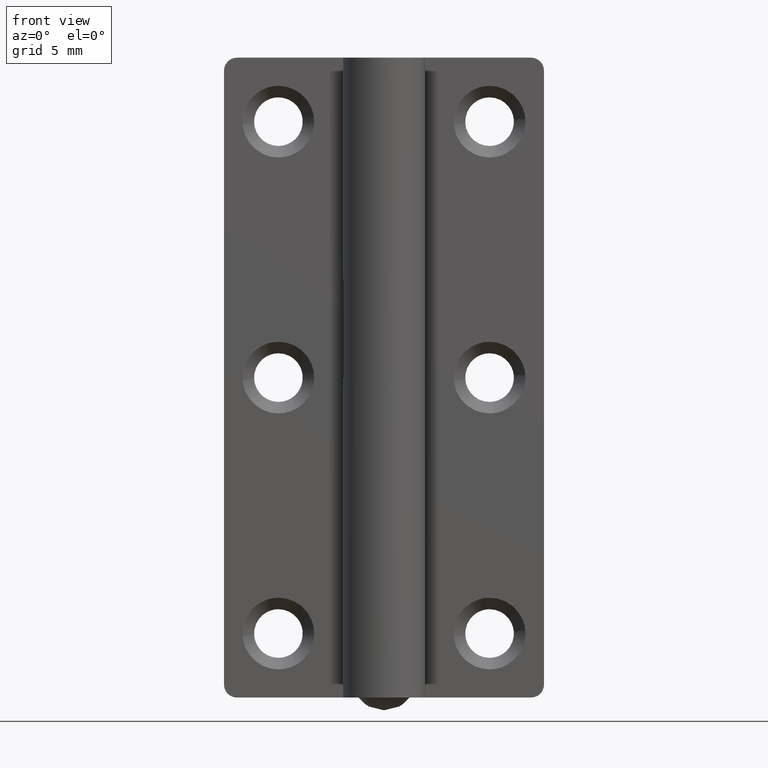
[diagram: clean part render]
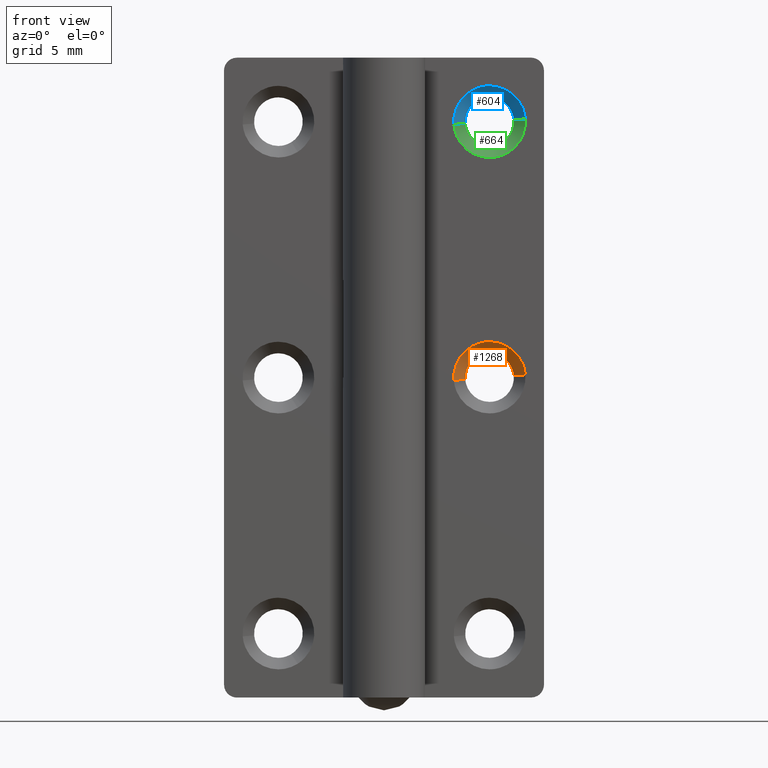
[diagram: same view with three faces highlighted in distinct colors, each labeled with its STEP entity id]
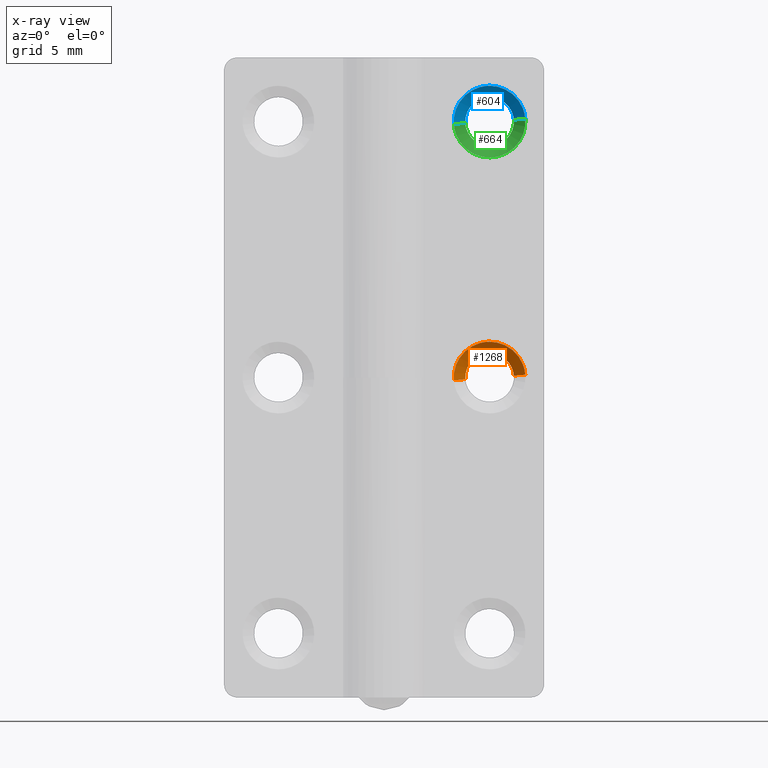
[diagram: x-ray of the same camera — body ghosted, the three highlighted faces saturated]
A machine part, front view with three faces highlighted in distinct colors.
The next image is the same camera in x-ray (body ghosted, the three faces saturated) — at least one of them is partly hidden behind the body in this view.
Their STEP definitions:

[orange] entity #1268 — the highlighted face is a freeform B-spline surface patch.
#1069=CARTESIAN_POINT('',(6.354122178725380,2.900000035761674,24.875737760687880));
#1070=VERTEX_POINT('',#1069);
#1118=CARTESIAN_POINT('',(10.144142934093839,2.900000035760562,25.149072281899809));
#1119=VERTEX_POINT('',#1118);
#1135=CARTESIAN_POINT('',(8.250000000000000,2.900000035762786,26.899999999999999));
#1136=VERTEX_POINT('',#1135);
#1137=CARTESIAN_POINT('',(8.250000000000000,2.900000035762786,26.899999999999999));
#1138=CARTESIAN_POINT('',(10.006341934119469,2.900000035762786,26.900000000000006));
#1139=CARTESIAN_POINT('',(10.144142934093843,2.900000035760562,25.149072281899816));
#1147=(BOUNDED_CURVE()B_SPLINE_CURVE(2,(#1137,#1138,#1139),.UNSPECIFIED.,.F.,.U.)B_SPLINE_CURVE_WITH_KNOTS((3,3),(0.0,0.236331300629738),.UNSPECIFIED.)CURVE()GEOMETRIC_REPRESENTATION_ITEM()RATIONAL_B_SPLINE_CURVE((1.0,0.723120658608745,0.969723356165495))REPRESENTATION_ITEM(''));
#1148=EDGE_CURVE('',#1136,#1119,#1147,.T.);
#1150=CARTESIAN_POINT('',(6.354122178725380,2.900000035761674,24.875737760687873));
#1151=CARTESIAN_POINT('',(6.350053313155316,2.900000035761691,24.937804013541662));
#1152=CARTESIAN_POINT('',(6.350052426923992,2.900000035761710,25.000003436237829));
#1153=CARTESIAN_POINT('',(6.350025355323194,2.900000035762266,26.900001661873603));
#1154=CARTESIAN_POINT('',(8.250000000000000,2.900000035762786,26.899999999999999));
#1162=(BOUNDED_CURVE()B_SPLINE_CURVE(2,(#1150,#1151,#1152,#1153,#1154),.UNSPECIFIED.,.F.,.U.)B_SPLINE_CURVE_WITH_KNOTS((3,2,3),(0.738580719742722,0.750000000000000,1.0),.UNSPECIFIED.)CURVE()GEOMETRIC_REPRESENTATION_ITEM()RATIONAL_B_SPLINE_CURVE((0.974465146454807,0.986621480995652,1.0,0.707106781186547,1.0))REPRESENTATION_ITEM(''));
#1163=EDGE_CURVE('',#1070,#1136,#1162,.T.);
#1202=CARTESIAN_POINT('',(10.121712293786841,2.922500036656856,25.147306952205650));
#1203=CARTESIAN_POINT('',(9.974405341581194,2.922500036656857,27.019019245992492));
#1204=CARTESIAN_POINT('',(8.102693047794352,2.922500036656856,26.871712293786839));
#1205=CARTESIAN_POINT('',(6.230980754007511,2.922500036656857,26.724405341581200));
#1206=CARTESIAN_POINT('',(6.378287706213158,2.922500036656856,24.852693047794350));
#1207=CARTESIAN_POINT('',(11.064359952650690,1.976937499083578,25.221494931892462));
#1208=CARTESIAN_POINT('',(10.842865020758225,1.976937499083579,28.035854884543159));
#1209=CARTESIAN_POINT('',(8.028505068107537,1.976937499083578,27.814359952650690));
#1210=CARTESIAN_POINT('',(5.214145115456848,1.976937499083579,27.592865020758225));
#1211=CARTESIAN_POINT('',(5.435640047349311,1.976937499083578,24.778505068107538));
#1219=(BOUNDED_SURFACE()B_SPLINE_SURFACE(2,1,((#1202,#1207),(#1203,#1208),(#1204,#1209),(#1205,#1210),(#1206,#1211)),.UNSPECIFIED.,.F.,.F.,.U.)B_SPLINE_SURFACE_WITH_KNOTS((3,2,3),(2,2),(0.0,4.677403119964948,9.354806239929896),(0.0,1.0),.UNSPECIFIED.)GEOMETRIC_REPRESENTATION_ITEM()RATIONAL_B_SPLINE_SURFACE(((1.0,1.0),(0.707106781186548,0.707106781186548),(1.0,1.0),(0.707106781186548,0.707106781186548),(1.0,1.0)))REPRESENTATION_ITEM('')SURFACE());
#1220=ORIENTED_EDGE('',*,*,#1148,.T.);
#1221=CARTESIAN_POINT('',(11.041368546347060,1.999999999974803,25.219685469165888));
#1222=VERTEX_POINT('',#1221);
#1223=CARTESIAN_POINT('',(10.144142934093839,2.900000035760562,25.149072281899809));
#1224=CARTESIAN_POINT('',(11.041368546347060,1.999999999974803,25.219685469165888));
#1225=QUASI_UNIFORM_CURVE('',1,(#1223,#1224),.UNSPECIFIED.,.F.,.U.);
#1226=EDGE_CURVE('',#1119,#1222,#1225,.T.);
#1227=ORIENTED_EDGE('',*,*,#1226,.T.);
#1228=CARTESIAN_POINT('',(8.250000000000000,2.0,27.800000011920929));
#1229=VERTEX_POINT('',#1228);
#1230=CARTESIAN_POINT('',(8.250000000000000,2.0,27.800000011920929));
#1231=CARTESIAN_POINT('',(10.838293387307948,2.0,27.800000011920936));
#1232=CARTESIAN_POINT('',(11.041368546347055,1.999999999974803,25.219685469165881));
#1240=(BOUNDED_CURVE()B_SPLINE_CURVE(2,(#1230,#1231,#1232),.UNSPECIFIED.,.F.,.U.)B_SPLINE_CURVE_WITH_KNOTS((3,3),(0.0,0.236331300609352),.UNSPECIFIED.)CURVE()GEOMETRIC_REPRESENTATION_ITEM()RATIONAL_B_SPLINE_CURVE((1.0,0.723120658632629,0.969723356122951))REPRESENTATION_ITEM(''));
#1241=EDGE_CURVE('',#1229,#1222,#1240,.T.);
#1242=ORIENTED_EDGE('',*,*,#1241,.F.);
#1243=CARTESIAN_POINT('',(5.458631453652947,1.999999999974803,24.780314530834112));
#1244=VERTEX_POINT('',#1243);
#1245=CARTESIAN_POINT('',(5.458631453652947,1.999999999974804,24.780314530834104));
#1246=CARTESIAN_POINT('',(5.449999988079070,2.0,24.889987699718631));
#1247=CARTESIAN_POINT('',(5.449999988079070,2.0,25.0));
#1248=CARTESIAN_POINT('',(5.449999988079070,2.000000000000000,27.800000011920940));
#1249=CARTESIAN_POINT('',(8.250000000000000,2.0,27.800000011920929));
#1257=(BOUNDED_CURVE()B_SPLINE_CURVE(2,(#1245,#1246,#1247,#1248,#1249),.UNSPECIFIED.,.F.,.U.)B_SPLINE_CURVE_WITH_KNOTS((3,2,3),(0.736331300609352,0.750000000000000,1.0),.UNSPECIFIED.)CURVE()GEOMETRIC_REPRESENTATION_ITEM()RATIONAL_B_SPLINE_CURVE((0.969723356122950,0.983986122553918,1.0,0.707106781186548,1.0))REPRESENTATION_ITEM(''));
#1258=EDGE_CURVE('',#1244,#1229,#1257,.T.);
#1259=ORIENTED_EDGE('',*,*,#1258,.F.);
#1260=CARTESIAN_POINT('',(6.354122178725380,2.900000035761674,24.875737760687880));
#1261=CARTESIAN_POINT('',(5.458631453652947,1.999999999974803,24.780314530834112));
#1262=QUASI_UNIFORM_CURVE('',1,(#1260,#1261),.UNSPECIFIED.,.F.,.U.);
#1263=EDGE_CURVE('',#1070,#1244,#1262,.T.);
#1264=ORIENTED_EDGE('',*,*,#1263,.F.);
#1265=ORIENTED_EDGE('',*,*,#1163,.T.);
#1266=EDGE_LOOP('',(#1220,#1227,#1242,#1259,#1264,#1265));
#1267=FACE_OUTER_BOUND('',#1266,.T.);
#1268=ADVANCED_FACE('',(#1267),#1219,.F.);

[blue] entity #604 — the highlighted face is a freeform B-spline surface patch.
#405=CARTESIAN_POINT('',(6.354122178725380,2.900000035761674,44.875737760687883));
#406=VERTEX_POINT('',#405);
#454=CARTESIAN_POINT('',(10.144142934093839,2.900000035760563,45.149072281899812));
#455=VERTEX_POINT('',#454);
#471=CARTESIAN_POINT('',(8.250000000000000,2.900000035762786,46.899999999999999));
#472=VERTEX_POINT('',#471);
#473=CARTESIAN_POINT('',(8.250000000000000,2.900000035762786,46.899999999999999));
#474=CARTESIAN_POINT('',(10.006341934119465,2.900000035762786,46.899999999999991));
#475=CARTESIAN_POINT('',(10.144142934093843,2.900000035760563,45.149072281899812));
#483=(BOUNDED_CURVE()B_SPLINE_CURVE(2,(#473,#474,#475),.UNSPECIFIED.,.F.,.U.)B_SPLINE_CURVE_WITH_KNOTS((3,3),(0.0,0.236331300629738),.UNSPECIFIED.)CURVE()GEOMETRIC_REPRESENTATION_ITEM()RATIONAL_B_SPLINE_CURVE((1.0,0.723120658608745,0.969723356165494))REPRESENTATION_ITEM(''));
#484=EDGE_CURVE('',#472,#455,#483,.T.);
#486=CARTESIAN_POINT('',(6.354122178725380,2.900000035761674,44.875737760687876));
#487=CARTESIAN_POINT('',(6.350053313155316,2.900000035761691,44.937804013541673));
#488=CARTESIAN_POINT('',(6.350052426923992,2.900000035761710,45.000003436237840));
#489=CARTESIAN_POINT('',(6.350025355323194,2.900000035762266,46.900001661873603));
#490=CARTESIAN_POINT('',(8.250000000000000,2.900000035762786,46.899999999999999));
#498=(BOUNDED_CURVE()B_SPLINE_CURVE(2,(#486,#487,#488,#489,#490),.UNSPECIFIED.,.F.,.U.)B_SPLINE_CURVE_WITH_KNOTS((3,2,3),(0.738580719742722,0.750000000000000,1.0),.UNSPECIFIED.)CURVE()GEOMETRIC_REPRESENTATION_ITEM()RATIONAL_B_SPLINE_CURVE((0.974465146454807,0.986621480995651,1.0,0.707106781186547,1.0))REPRESENTATION_ITEM(''));
#499=EDGE_CURVE('',#406,#472,#498,.T.);
#538=CARTESIAN_POINT('',(10.121712293786841,2.922500036656856,45.147306952205653));
#539=CARTESIAN_POINT('',(9.974405341581194,2.922500036656857,47.019019245992489));
#540=CARTESIAN_POINT('',(8.102693047794352,2.922500036656856,46.871712293786842));
#541=CARTESIAN_POINT('',(6.230980754007511,2.922500036656857,46.724405341581189));
#542=CARTESIAN_POINT('',(6.378287706213158,2.922500036656856,44.852693047794347));
#543=CARTESIAN_POINT('',(11.064359952650690,1.976937499083578,45.221494931892472));
#544=CARTESIAN_POINT('',(10.842865020758225,1.976937499083579,48.035854884543156));
#545=CARTESIAN_POINT('',(8.028505068107537,1.976937499083578,47.814359952650690));
#546=CARTESIAN_POINT('',(5.214145115456848,1.976937499083579,47.592865020758225));
#547=CARTESIAN_POINT('',(5.435640047349311,1.976937499083578,44.778505068107542));
#555=(BOUNDED_SURFACE()B_SPLINE_SURFACE(2,1,((#538,#543),(#539,#544),(#540,#545),(#541,#546),(#542,#547)),.UNSPECIFIED.,.F.,.F.,.U.)B_SPLINE_SURFACE_WITH_KNOTS((3,2,3),(2,2),(0.0,4.677403119964956,9.354806239929912),(0.0,1.0),.UNSPECIFIED.)GEOMETRIC_REPRESENTATION_ITEM()RATIONAL_B_SPLINE_SURFACE(((1.0,1.0),(0.707106781186548,0.707106781186548),(1.0,1.0),(0.707106781186548,0.707106781186548),(1.0,1.0)))REPRESENTATION_ITEM('')SURFACE());
#556=ORIENTED_EDGE('',*,*,#484,.T.);
#557=CARTESIAN_POINT('',(11.041368546347050,1.999999999974803,45.219685469165903));
#558=VERTEX_POINT('',#557);
#559=CARTESIAN_POINT('',(10.144142934093839,2.900000035760563,45.149072281899812));
#560=CARTESIAN_POINT('',(11.041368546347050,1.999999999974803,45.219685469165903));
#561=QUASI_UNIFORM_CURVE('',1,(#559,#560),.UNSPECIFIED.,.F.,.U.);
#562=EDGE_CURVE('',#455,#558,#561,.T.);
#563=ORIENTED_EDGE('',*,*,#562,.T.);
#564=CARTESIAN_POINT('',(8.250000000000000,2.0,47.800000011920929));
#565=VERTEX_POINT('',#564);
#566=CARTESIAN_POINT('',(8.250000000000000,2.0,47.800000011920929));
#567=CARTESIAN_POINT('',(10.838293387307941,2.0,47.800000011920929));
#568=CARTESIAN_POINT('',(11.041368546347057,1.999999999974803,45.219685469165896));
#576=(BOUNDED_CURVE()B_SPLINE_CURVE(2,(#566,#567,#568),.UNSPECIFIED.,.F.,.U.)B_SPLINE_CURVE_WITH_KNOTS((3,3),(0.0,0.236331300609352),.UNSPECIFIED.)CURVE()GEOMETRIC_REPRESENTATION_ITEM()RATIONAL_B_SPLINE_CURVE((1.0,0.723120658632630,0.969723356122950))REPRESENTATION_ITEM(''));
#577=EDGE_CURVE('',#565,#558,#576,.T.);
#578=ORIENTED_EDGE('',*,*,#577,.F.);
#579=CARTESIAN_POINT('',(5.458631453652947,1.999999999974804,44.780314530834112));
#580=VERTEX_POINT('',#579);
#581=CARTESIAN_POINT('',(5.458631453652947,1.999999999974804,44.780314530834112));
#582=CARTESIAN_POINT('',(5.449999988079070,2.0,44.889987699718631));
#583=CARTESIAN_POINT('',(5.449999988079070,2.0,45.0));
#584=CARTESIAN_POINT('',(5.449999988079070,2.000000000000000,47.800000011920929));
#585=CARTESIAN_POINT('',(8.250000000000000,2.0,47.800000011920929));
#593=(BOUNDED_CURVE()B_SPLINE_CURVE(2,(#581,#582,#583,#584,#585),.UNSPECIFIED.,.F.,.U.)B_SPLINE_CURVE_WITH_KNOTS((3,2,3),(0.736331300609352,0.750000000000000,1.0),.UNSPECIFIED.)CURVE()GEOMETRIC_REPRESENTATION_ITEM()RATIONAL_B_SPLINE_CURVE((0.969723356122950,0.983986122553918,1.0,0.707106781186548,1.0))REPRESENTATION_ITEM(''));
#594=EDGE_CURVE('',#580,#565,#593,.T.);
#595=ORIENTED_EDGE('',*,*,#594,.F.);
#596=CARTESIAN_POINT('',(6.354122178725380,2.900000035761674,44.875737760687883));
#597=CARTESIAN_POINT('',(5.458631453652947,1.999999999974804,44.780314530834112));
#598=QUASI_UNIFORM_CURVE('',1,(#596,#597),.UNSPECIFIED.,.F.,.U.);
#599=EDGE_CURVE('',#406,#580,#598,.T.);
#600=ORIENTED_EDGE('',*,*,#599,.F.);
#601=ORIENTED_EDGE('',*,*,#499,.T.);
#602=EDGE_LOOP('',(#556,#563,#578,#595,#600,#601));
#603=FACE_OUTER_BOUND('',#602,.T.);
#604=ADVANCED_FACE('',(#603),#555,.F.);

[green] entity #664 — the highlighted face is a freeform B-spline surface patch.
#351=CARTESIAN_POINT('',(10.137591364546340,2.900000035762786,44.783207840341760));
#352=VERTEX_POINT('',#351);
#353=CARTESIAN_POINT('',(8.250000000000000,2.900000035762786,43.100000000000001));
#354=VERTEX_POINT('',#353);
#355=CARTESIAN_POINT('',(10.137591364546338,2.900000035762786,44.783207840341760));
#356=CARTESIAN_POINT('',(9.944272090643279,2.900000035762786,43.100000000000001));
#357=CARTESIAN_POINT('',(8.250000000000000,2.900000035762786,43.100000000000001));
#365=(BOUNDED_CURVE()B_SPLINE_CURVE(2,(#355,#356,#357),.UNSPECIFIED.,.F.,.U.)B_SPLINE_CURVE_WITH_KNOTS((3,3),(0.269767916659028,0.500000000000000),.UNSPECIFIED.)CURVE()GEOMETRIC_REPRESENTATION_ITEM()RATIONAL_B_SPLINE_CURVE((0.957343419302169,0.730266336144542,1.0))REPRESENTATION_ITEM(''));
#366=EDGE_CURVE('',#352,#354,#365,.T.);
#405=CARTESIAN_POINT('',(6.354122178725380,2.900000035761674,44.875737760687883));
#406=VERTEX_POINT('',#405);
#412=CARTESIAN_POINT('',(8.250000000000000,2.900000035762786,43.100000000000001));
#413=CARTESIAN_POINT('',(6.470482728270439,2.900000035762231,43.100001774364237));
#414=CARTESIAN_POINT('',(6.354122178725380,2.900000035761674,44.875737760687876));
#422=(BOUNDED_CURVE()B_SPLINE_CURVE(2,(#412,#413,#414),.UNSPECIFIED.,.F.,.U.)B_SPLINE_CURVE_WITH_KNOTS((3,3),(0.500000000000000,0.738580719742722),.UNSPECIFIED.)CURVE()GEOMETRIC_REPRESENTATION_ITEM()RATIONAL_B_SPLINE_CURVE((1.0,0.720485300190896,0.974465146454807))REPRESENTATION_ITEM(''));
#423=EDGE_CURVE('',#354,#406,#422,.T.);
#454=CARTESIAN_POINT('',(10.144142934093839,2.900000035760563,45.149072281899812));
#455=VERTEX_POINT('',#454);
#456=CARTESIAN_POINT('',(10.144142934093843,2.900000035760563,45.149072281899812));
#457=CARTESIAN_POINT('',(10.150000000000000,2.900000035762786,45.074651203331392));
#458=CARTESIAN_POINT('',(10.150000000000000,2.900000035762786,45.0));
#459=CARTESIAN_POINT('',(10.150000000000002,2.900000035762786,44.891248347949144));
#460=CARTESIAN_POINT('',(10.137591364546338,2.900000035762786,44.783207840341767));
#468=(BOUNDED_CURVE()B_SPLINE_CURVE(2,(#456,#457,#458,#459,#460),.UNSPECIFIED.,.F.,.U.)B_SPLINE_CURVE_WITH_KNOTS((3,2,3),(0.236331300629738,0.250000000000000,0.269767916659028),.UNSPECIFIED.)CURVE()GEOMETRIC_REPRESENTATION_ITEM()RATIONAL_B_SPLINE_CURVE((0.969723356165494,0.983986122577802,1.0,0.976840445042005,0.957343419302169))REPRESENTATION_ITEM(''));
#469=EDGE_CURVE('',#455,#352,#468,.T.);
#557=CARTESIAN_POINT('',(11.041368546347050,1.999999999974803,45.219685469165903));
#558=VERTEX_POINT('',#557);
#559=CARTESIAN_POINT('',(10.144142934093839,2.900000035760563,45.149072281899812));
#560=CARTESIAN_POINT('',(11.041368546347050,1.999999999974803,45.219685469165903));
#561=QUASI_UNIFORM_CURVE('',1,(#559,#560),.UNSPECIFIED.,.F.,.U.);
#562=EDGE_CURVE('',#455,#558,#561,.T.);
#579=CARTESIAN_POINT('',(5.458631453652947,1.999999999974804,44.780314530834112));
#580=VERTEX_POINT('',#579);
#596=CARTESIAN_POINT('',(6.354122178725380,2.900000035761674,44.875737760687883));
#597=CARTESIAN_POINT('',(5.458631453652947,1.999999999974804,44.780314530834112));
#598=QUASI_UNIFORM_CURVE('',1,(#596,#597),.UNSPECIFIED.,.F.,.U.);
#599=EDGE_CURVE('',#406,#580,#598,.T.);
#605=CARTESIAN_POINT('',(6.374311533187699,2.922500036656855,44.903215116322265));
#606=CARTESIAN_POINT('',(6.376288443188562,2.922500036656857,44.878096093106386));
#607=CARTESIAN_POINT('',(6.525594658418805,2.922500036656857,42.980980754007504));
#608=CARTESIAN_POINT('',(8.397306952205648,2.922500036656856,43.128287706213158));
#609=CARTESIAN_POINT('',(10.269019245992490,2.922500036656857,43.275594658418797));
#610=CARTESIAN_POINT('',(10.120668925814782,2.922500036656856,45.160564199273828));
#611=CARTESIAN_POINT('',(10.119631662113321,2.922500036656857,45.173743884230021));
#612=CARTESIAN_POINT('',(5.429661360258991,1.976937499083578,44.854471490330660));
#613=CARTESIAN_POINT('',(5.432633898482353,1.976937499083579,44.816701811078588));
#614=CARTESIAN_POINT('',(5.657134979241775,1.976937499083579,41.964145115456844));
#615=CARTESIAN_POINT('',(8.471494931892464,1.976937499083578,42.185640047349310));
#616=CARTESIAN_POINT('',(11.285854884543152,1.976937499083579,42.407134979241775));
#617=CARTESIAN_POINT('',(11.062791114829738,1.976937499083579,45.241428906443431));
#618=CARTESIAN_POINT('',(11.061231455564029,1.976937499083579,45.261246256392148));
#626=(BOUNDED_SURFACE()B_SPLINE_SURFACE(2,1,((#605,#612),(#606,#613),(#607,#614),(#608,#615),(#609,#616),(#610,#617),(#611,#618)),.UNSPECIFIED.,.F.,.F.,.U.)B_SPLINE_SURFACE_WITH_KNOTS((3,1,2,1,3),(2,2),(0.0,0.090284847627210,4.767687967592161,9.445091087557112,9.492081589662147),(0.0,1.0),.UNSPECIFIED.)GEOMETRIC_REPRESENTATION_ITEM()RATIONAL_B_SPLINE_SURFACE(((1.011307051777831,1.011307051777831),(1.005653525888915,1.005653525888915),(0.707106781186548,0.707106781186548),(1.0,1.0),(0.707106781186548,0.707106781186548),(1.002942487329445,1.002942487329445),(1.005884974658890,1.005884974658890)))REPRESENTATION_ITEM('')SURFACE());
#627=ORIENTED_EDGE('',*,*,#469,.T.);
#628=ORIENTED_EDGE('',*,*,#366,.T.);
#629=ORIENTED_EDGE('',*,*,#423,.T.);
#630=ORIENTED_EDGE('',*,*,#599,.T.);
#631=CARTESIAN_POINT('',(8.250000000000000,2.0,42.199999988079057));
#632=VERTEX_POINT('',#631);
#633=CARTESIAN_POINT('',(8.250000000000000,2.0,42.199999988079057));
#634=CARTESIAN_POINT('',(5.661706612692063,2.000000000000000,42.199999988079071));
#635=CARTESIAN_POINT('',(5.458631453652947,1.999999999974804,44.780314530834112));
#643=(BOUNDED_CURVE()B_SPLINE_CURVE(2,(#633,#634,#635),.UNSPECIFIED.,.F.,.U.)B_SPLINE_CURVE_WITH_KNOTS((3,3),(0.500000000000000,0.736331300609351),.UNSPECIFIED.)CURVE()GEOMETRIC_REPRESENTATION_ITEM()RATIONAL_B_SPLINE_CURVE((1.0,0.723120658632630,0.969723356122949))REPRESENTATION_ITEM(''));
#644=EDGE_CURVE('',#632,#580,#643,.T.);
#645=ORIENTED_EDGE('',*,*,#644,.F.);
#646=CARTESIAN_POINT('',(11.041368546347053,1.999999999974804,45.219685469165896));
#647=CARTESIAN_POINT('',(11.050000011920934,2.000000000000000,45.110012300281383));
#648=CARTESIAN_POINT('',(11.050000011920931,2.0,45.0));
#649=CARTESIAN_POINT('',(11.050000011920931,2.000000000000000,42.199999988079057));
#650=CARTESIAN_POINT('',(8.250000000000000,2.0,42.199999988079057));
#658=(BOUNDED_CURVE()B_SPLINE_CURVE(2,(#646,#647,#648,#649,#650),.UNSPECIFIED.,.F.,.U.)B_SPLINE_CURVE_WITH_KNOTS((3,2,3),(0.236331300609352,0.250000000000000,0.500000000000000),.UNSPECIFIED.)CURVE()GEOMETRIC_REPRESENTATION_ITEM()RATIONAL_B_SPLINE_CURVE((0.969723356122950,0.983986122553918,1.0,0.707106781186548,1.0))REPRESENTATION_ITEM(''));
#659=EDGE_CURVE('',#558,#632,#658,.T.);
#660=ORIENTED_EDGE('',*,*,#659,.F.);
#661=ORIENTED_EDGE('',*,*,#562,.F.);
#662=EDGE_LOOP('',(#627,#628,#629,#630,#645,#660,#661));
#663=FACE_OUTER_BOUND('',#662,.T.);
#664=ADVANCED_FACE('',(#663),#626,.F.);